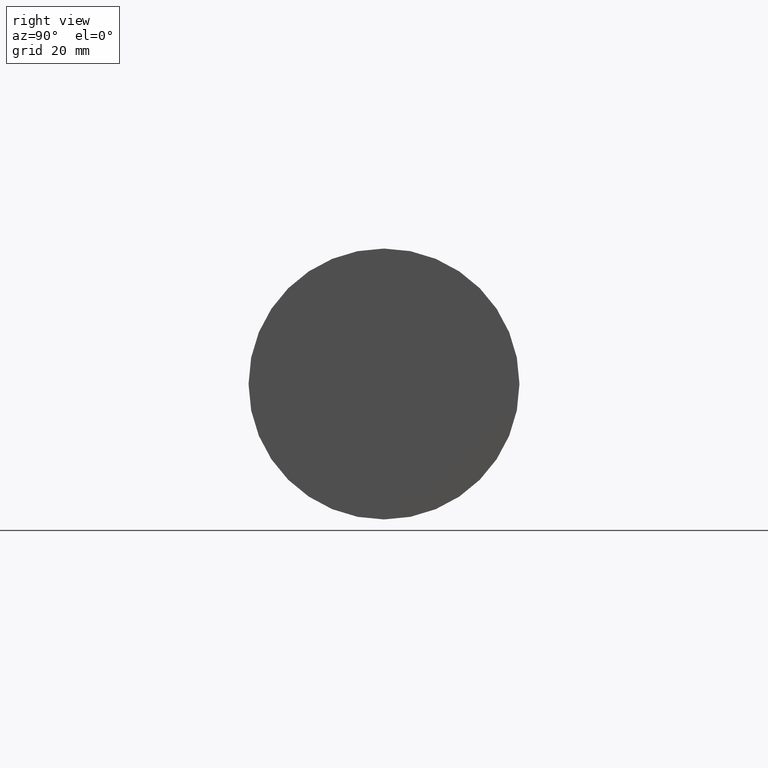
[diagram: clean part render]
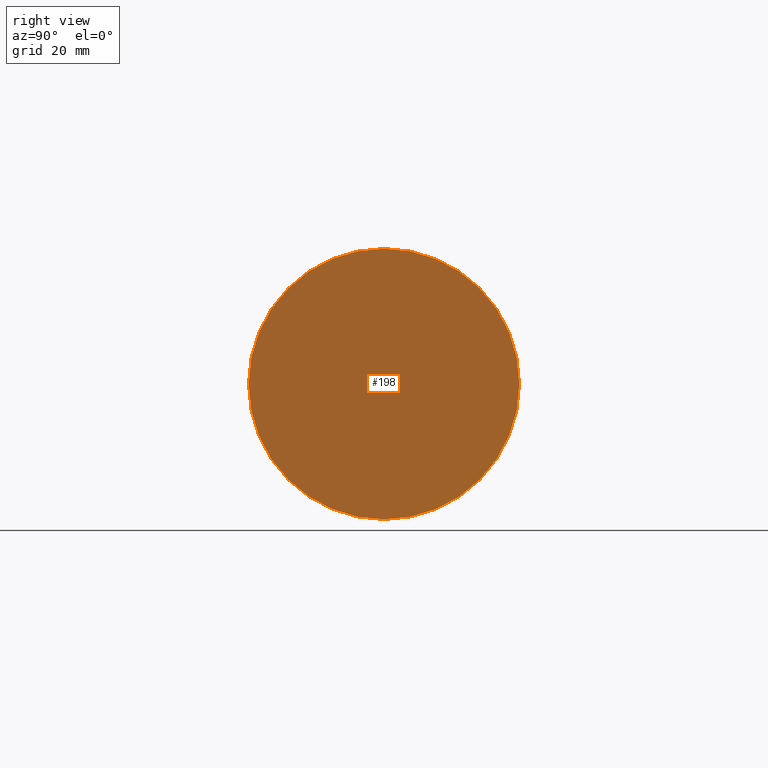
[diagram: same view with one face highlighted and labeled with its STEP entity id]
A machine part, right view. The second image highlights one B-rep face of the part: STEP entity #198.
In plain terms, the highlighted planar face has unit normal (-1, 0, 0).
Its self-contained STEP definition (entity closure, byte-faithful):
#11 = VERTEX_POINT ( 'NONE', #223 ) ;
#14 = DIRECTION ( 'NONE',  ( 0.000000000000000000, 0.000000000000000000, 1.000000000000000000 ) ) ;
#20 = CIRCLE ( 'NONE', #97, 24.99999997449999967 ) ;
#27 = ORIENTED_EDGE ( 'NONE', *, *, #121, .F. ) ;
#32 = VERTEX_POINT ( 'NONE', #221 ) ;
#54 = CARTESIAN_POINT ( 'NONE',  ( 84.99999991329998750, 0.000000000000000000, 0.000000000000000000 ) ) ;
#66 = EDGE_LOOP ( 'NONE', ( #27, #109 ) ) ;
#76 = CIRCLE ( 'NONE', #140, 24.99999997449999967 ) ;
#79 = CARTESIAN_POINT ( 'NONE',  ( 84.99999991329998750, 0.000000000000000000, 0.000000000000000000 ) ) ;
#85 = DIRECTION ( 'NONE',  ( 0.000000000000000000, 0.000000000000000000, 1.000000000000000000 ) ) ;
#97 = AXIS2_PLACEMENT_3D ( 'NONE', #79, #232, #196 ) ;
#109 = ORIENTED_EDGE ( 'NONE', *, *, #234, .F. ) ;
#121 = EDGE_CURVE ( 'NONE', #32, #11, #20, .T. ) ;
#122 = PLANE ( 'NONE',  #200 ) ;
#140 = AXIS2_PLACEMENT_3D ( 'NONE', #54, #216, #85 ) ;
#175 = CARTESIAN_POINT ( 'NONE',  ( 84.99999991329998750, 0.000000000000000000, 0.000000000000000000 ) ) ;
#194 = DIRECTION ( 'NONE',  ( -1.000000000000000000, 0.000000000000000000, 0.000000000000000000 ) ) ;
#196 = DIRECTION ( 'NONE',  ( 0.000000000000000000, 0.000000000000000000, 1.000000000000000000 ) ) ;
#198 = ADVANCED_FACE ( 'NONE', ( #214 ), #122, .F. ) ;
#200 = AXIS2_PLACEMENT_3D ( 'NONE', #175, #194, #14 ) ;
#214 = FACE_OUTER_BOUND ( 'NONE', #66, .T. ) ;
#216 = DIRECTION ( 'NONE',  ( -1.000000000000000000, 0.000000000000000000, 0.000000000000000000 ) ) ;
#221 = CARTESIAN_POINT ( 'NONE',  ( 84.99999991329998750, 0.000000000000000000, 24.99999997449999967 ) ) ;
#223 = CARTESIAN_POINT ( 'NONE',  ( 84.99999991329998750, 3.061616994745535943E-15, -24.99999997449999967 ) ) ;
#232 = DIRECTION ( 'NONE',  ( -1.000000000000000000, 0.000000000000000000, 0.000000000000000000 ) ) ;
#234 = EDGE_CURVE ( 'NONE', #11, #32, #76, .T. ) ;